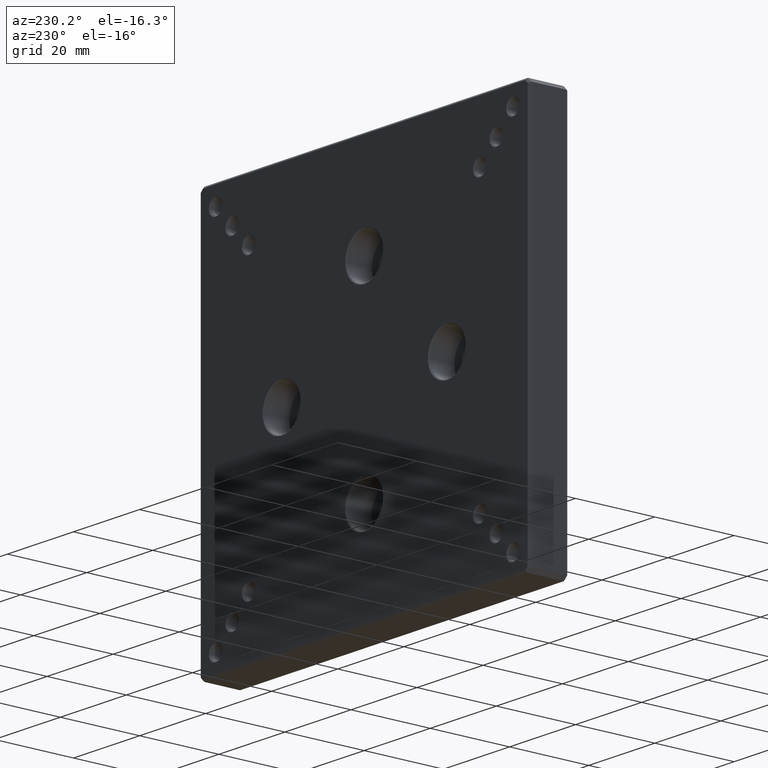
[diagram: clean part render]
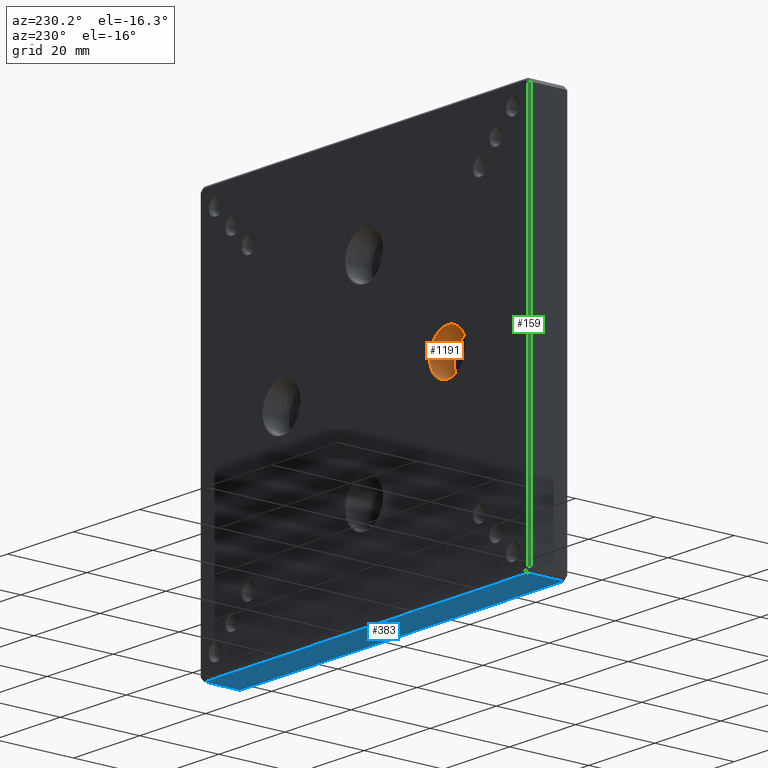
[diagram: same view with three faces highlighted in distinct colors, each labeled with its STEP entity id]
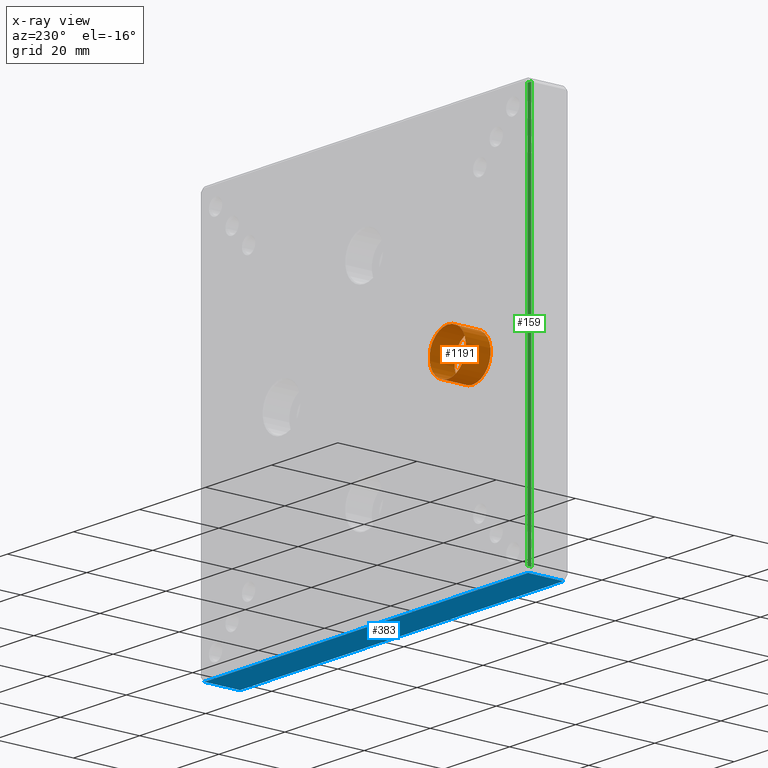
[diagram: x-ray of the same camera — body ghosted, the three highlighted faces saturated]
A machine part, auxiliary view with three faces highlighted in distinct colors.
The next image is the same camera in x-ray (body ghosted, the three faces saturated) — at least one of them is partly hidden behind the body in this view.
Their STEP definitions:

[orange] entity #1191 — the highlighted cylindrical surface (bore or boss wall) has radius 5.5 mm, axis along (-0, 1, -0).
#137 = CARTESIAN_POINT ( 'NONE',  ( -25.00000000000000000, 9.749999999999975131, 5.500000000000005329 ) ) ;
#152 = CARTESIAN_POINT ( 'NONE',  ( -25.00000000000000000, 3.499999999999999556, 5.500000000000005329 ) ) ;
#164 = EDGE_LOOP ( 'NONE', ( #1279 ) ) ;
#376 = CIRCLE ( 'NONE', #899, 5.500000000000011546 ) ;
#396 = EDGE_LOOP ( 'NONE', ( #1536 ) ) ;
#454 = DIRECTION ( 'NONE',  ( 0.000000000000000000, 0.000000000000000000, 1.000000000000000000 ) ) ;
#464 = EDGE_CURVE ( 'NONE', #1631, #1631, #659, .T. ) ;
#551 = DIRECTION ( 'NONE',  ( -0.000000000000000000, 1.000000000000000000, -0.000000000000000000 ) ) ;
#654 = EDGE_CURVE ( 'NONE', #838, #838, #376, .T. ) ;
#659 = CIRCLE ( 'NONE', #1385, 5.500000000000011546 ) ;
#715 = FACE_OUTER_BOUND ( 'NONE', #164, .T. ) ;
#738 = CYLINDRICAL_SURFACE ( 'NONE', #1215, 5.500000000000011546 ) ;
#823 = DIRECTION ( 'NONE',  ( 0.000000000000000000, 0.000000000000000000, 1.000000000000000000 ) ) ;
#838 = VERTEX_POINT ( 'NONE', #152 ) ;
#899 = AXIS2_PLACEMENT_3D ( 'NONE', #1763, #551, #823 ) ;
#929 = DIRECTION ( 'NONE',  ( 0.000000000000000000, 0.000000000000000000, 1.000000000000000000 ) ) ;
#990 = CARTESIAN_POINT ( 'NONE',  ( -25.00000000000000000, 10.00000000000000000, -6.938893903907228378E-15 ) ) ;
#1053 = DIRECTION ( 'NONE',  ( 0.000000000000000000, 1.000000000000000000, 0.000000000000000000 ) ) ;
#1126 = DIRECTION ( 'NONE',  ( -0.000000000000000000, 1.000000000000000000, -0.000000000000000000 ) ) ;
#1191 = ADVANCED_FACE ( 'NONE', ( #1382, #715 ), #738, .F. ) ;
#1215 = AXIS2_PLACEMENT_3D ( 'NONE', #990, #1126, #454 ) ;
#1251 = CARTESIAN_POINT ( 'NONE',  ( -25.00000000000000000, 9.749999999999975131, -6.938893903907228378E-15 ) ) ;
#1279 = ORIENTED_EDGE ( 'NONE', *, *, #654, .F. ) ;
#1382 = FACE_OUTER_BOUND ( 'NONE', #396, .T. ) ;
#1385 = AXIS2_PLACEMENT_3D ( 'NONE', #1251, #1053, #929 ) ;
#1536 = ORIENTED_EDGE ( 'NONE', *, *, #464, .T. ) ;
#1631 = VERTEX_POINT ( 'NONE', #137 ) ;
#1763 = CARTESIAN_POINT ( 'NONE',  ( -25.00000000000000000, 3.499999999999999556, -6.938893903907228378E-15 ) ) ;

[blue] entity #383 — the highlighted planar face has unit normal (0, 0, 1).
#9 = VECTOR ( 'NONE', #912, 1000.000000000000000 ) ;
#13 = DIRECTION ( 'NONE',  ( 1.000000000000000000, 0.000000000000000000, -0.000000000000000000 ) ) ;
#147 = ORIENTED_EDGE ( 'NONE', *, *, #524, .T. ) ;
#189 = FACE_OUTER_BOUND ( 'NONE', #1418, .T. ) ;
#216 = CARTESIAN_POINT ( 'NONE',  ( 49.00000000000002132, 10.00000000000000000, -49.99999999999998579 ) ) ;
#220 = VERTEX_POINT ( 'NONE', #1334 ) ;
#240 = VERTEX_POINT ( 'NONE', #513 ) ;
#261 = ORIENTED_EDGE ( 'NONE', *, *, #1564, .T. ) ;
#298 = VECTOR ( 'NONE', #1187, 1000.000000000000000 ) ;
#356 = LINE ( 'NONE', #1607, #1677 ) ;
#383 = ADVANCED_FACE ( 'NONE', ( #189 ), #755, .F. ) ;
#513 = CARTESIAN_POINT ( 'NONE',  ( -48.99999999999999289, 9.500000000000000000, -49.99999999999998579 ) ) ;
#524 = EDGE_CURVE ( 'NONE', #696, #220, #1451, .T. ) ;
#597 = DIRECTION ( 'NONE',  ( -0.000000000000000000, 1.000000000000000000, 0.000000000000000000 ) ) ;
#637 = CARTESIAN_POINT ( 'NONE',  ( 49.00000000000002132, 9.500000000000000000, -49.99999999999998579 ) ) ;
#685 = DIRECTION ( 'NONE',  ( 0.000000000000000000, 0.000000000000000000, 1.000000000000000000 ) ) ;
#696 = VERTEX_POINT ( 'NONE', #1770 ) ;
#755 = PLANE ( 'NONE',  #1492 ) ;
#912 = DIRECTION ( 'NONE',  ( 0.000000000000000000, -1.000000000000000000, 0.000000000000000000 ) ) ;
#913 = DIRECTION ( 'NONE',  ( -1.000000000000000000, 0.000000000000000000, 0.000000000000000000 ) ) ;
#988 = CARTESIAN_POINT ( 'NONE',  ( -48.99999999999999289, 10.00000000000000000, -49.99999999999998579 ) ) ;
#1122 = LINE ( 'NONE', #988, #1220 ) ;
#1162 = ORIENTED_EDGE ( 'NONE', *, *, #1695, .T. ) ;
#1187 = DIRECTION ( 'NONE',  ( 1.000000000000000000, 0.000000000000000000, 0.000000000000000000 ) ) ;
#1220 = VECTOR ( 'NONE', #597, 1000.000000000000000 ) ;
#1283 = CARTESIAN_POINT ( 'NONE',  ( -50.00000000000000711, 10.00000000000000000, -49.99999999999998579 ) ) ;
#1334 = CARTESIAN_POINT ( 'NONE',  ( 49.00000000000002132, 0.5000000000000004441, -49.99999999999998579 ) ) ;
#1406 = CARTESIAN_POINT ( 'NONE',  ( -48.99999999999999289, 0.5000000000000004441, -49.99999999999998579 ) ) ;
#1418 = EDGE_LOOP ( 'NONE', ( #147, #1162, #261, #1551 ) ) ;
#1451 = LINE ( 'NONE', #216, #9 ) ;
#1458 = VERTEX_POINT ( 'NONE', #1406 ) ;
#1492 = AXIS2_PLACEMENT_3D ( 'NONE', #1283, #685, #13 ) ;
#1551 = ORIENTED_EDGE ( 'NONE', *, *, #1765, .T. ) ;
#1564 = EDGE_CURVE ( 'NONE', #1458, #240, #1122, .T. ) ;
#1607 = CARTESIAN_POINT ( 'NONE',  ( -50.00000000000000711, 0.5000000000000004441, -49.99999999999998579 ) ) ;
#1677 = VECTOR ( 'NONE', #913, 1000.000000000000000 ) ;
#1695 = EDGE_CURVE ( 'NONE', #220, #1458, #356, .T. ) ;
#1740 = LINE ( 'NONE', #637, #298 ) ;
#1765 = EDGE_CURVE ( 'NONE', #240, #696, #1740, .T. ) ;
#1770 = CARTESIAN_POINT ( 'NONE',  ( 49.00000000000002132, 9.500000000000000000, -49.99999999999998579 ) ) ;

[green] entity #159 — the highlighted planar face has unit normal (-0.7071, 0.7071, 0).
#46 = LINE ( 'NONE', #198, #1453 ) ;
#106 = DIRECTION ( 'NONE',  ( -0.7071067811865475727, 0.7071067811865475727, 9.813077866773594484E-17 ) ) ;
#115 = ORIENTED_EDGE ( 'NONE', *, *, #796, .T. ) ;
#159 = ADVANCED_FACE ( 'NONE', ( #1349 ), #1207, .T. ) ;
#179 = VECTOR ( 'NONE', #442, 999.9999999999998863 ) ;
#198 = CARTESIAN_POINT ( 'NONE',  ( -50.00000000000000711, 9.500000000000000000, -48.99999999999997158 ) ) ;
#272 = CARTESIAN_POINT ( 'NONE',  ( -49.50000000000000711, 10.00000000000000000, -48.79289321881343255 ) ) ;
#375 = DIRECTION ( 'NONE',  ( -0.6785983445458532159, -0.6785983445458532159, 0.2810846377147903641 ) ) ;
#442 = DIRECTION ( 'NONE',  ( -0.6785983445458496632, -0.6785983445458496632, -0.2810846377148077391 ) ) ;
#584 = CARTESIAN_POINT ( 'NONE',  ( -49.49999999999999289, 10.00000000000000000, 48.79289321881349650 ) ) ;
#604 = LINE ( 'NONE', #1128, #179 ) ;
#622 = VERTEX_POINT ( 'NONE', #1112 ) ;
#680 = VERTEX_POINT ( 'NONE', #272 ) ;
#706 = VECTOR ( 'NONE', #1744, 1000.000000000000000 ) ;
#743 = DIRECTION ( 'NONE',  ( -1.387778780781445676E-16, 0.000000000000000000, -1.000000000000000000 ) ) ;
#796 = EDGE_CURVE ( 'NONE', #680, #992, #604, .T. ) ;
#869 = VERTEX_POINT ( 'NONE', #584 ) ;
#970 = EDGE_LOOP ( 'NONE', ( #115, #1479, #1117, #1662 ) ) ;
#992 = VERTEX_POINT ( 'NONE', #1182 ) ;
#998 = EDGE_CURVE ( 'NONE', #680, #869, #1050, .T. ) ;
#1033 = CARTESIAN_POINT ( 'NONE',  ( -40.19306936508376538, 19.30693063491622752, 44.93783632576599274 ) ) ;
#1050 = LINE ( 'NONE', #1713, #706 ) ;
#1083 = CARTESIAN_POINT ( 'NONE',  ( -49.50000000000000000, 10.00000000000000000, 6.869504964868156094E-15 ) ) ;
#1112 = CARTESIAN_POINT ( 'NONE',  ( -49.99999999999999289, 9.500000000000000000, 49.00000000000001421 ) ) ;
#1117 = ORIENTED_EDGE ( 'NONE', *, *, #1683, .F. ) ;
#1128 = CARTESIAN_POINT ( 'NONE',  ( -49.40462821508472757, 10.09537178491528131, -48.75338893203380053 ) ) ;
#1167 = LINE ( 'NONE', #1033, #1483 ) ;
#1182 = CARTESIAN_POINT ( 'NONE',  ( -50.00000000000000711, 9.500000000000000000, -48.99999999999997158 ) ) ;
#1207 = PLANE ( 'NONE',  #1545 ) ;
#1233 = DIRECTION ( 'NONE',  ( -1.387778780781445676E-16, 0.000000000000000000, -1.000000000000000000 ) ) ;
#1349 = FACE_OUTER_BOUND ( 'NONE', #970, .T. ) ;
#1453 = VECTOR ( 'NONE', #743, 1000.000000000000000 ) ;
#1479 = ORIENTED_EDGE ( 'NONE', *, *, #1542, .F. ) ;
#1483 = VECTOR ( 'NONE', #375, 1000.000000000000114 ) ;
#1542 = EDGE_CURVE ( 'NONE', #622, #992, #46, .T. ) ;
#1545 = AXIS2_PLACEMENT_3D ( 'NONE', #1083, #106, #1233 ) ;
#1662 = ORIENTED_EDGE ( 'NONE', *, *, #998, .F. ) ;
#1683 = EDGE_CURVE ( 'NONE', #869, #622, #1167, .T. ) ;
#1713 = CARTESIAN_POINT ( 'NONE',  ( -49.49999999999999289, 10.00000000000000000, 49.00000000000001421 ) ) ;
#1744 = DIRECTION ( 'NONE',  ( 1.387778780781445676E-16, 0.000000000000000000, 1.000000000000000000 ) ) ;